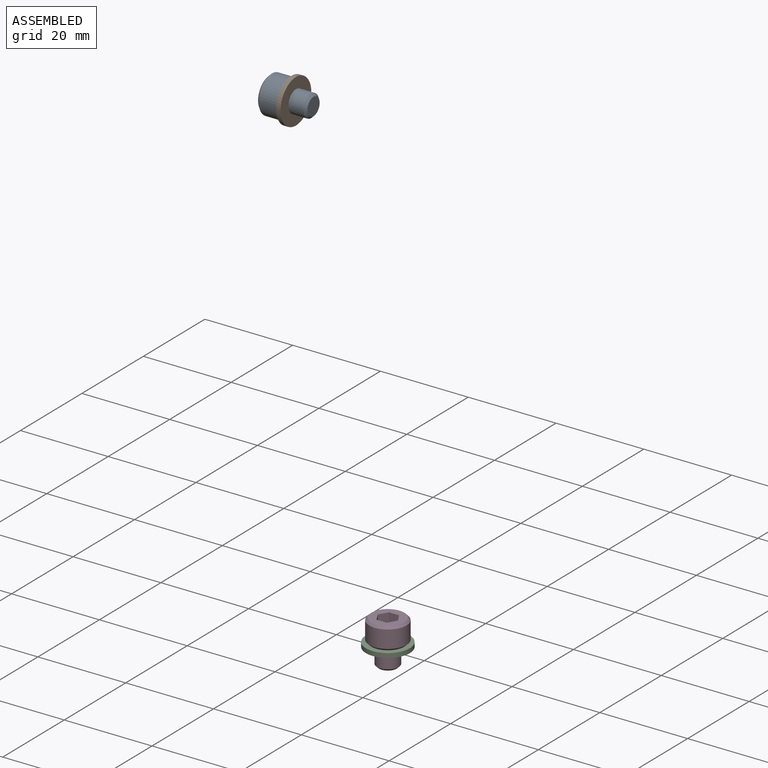
[diagram: assembled view]
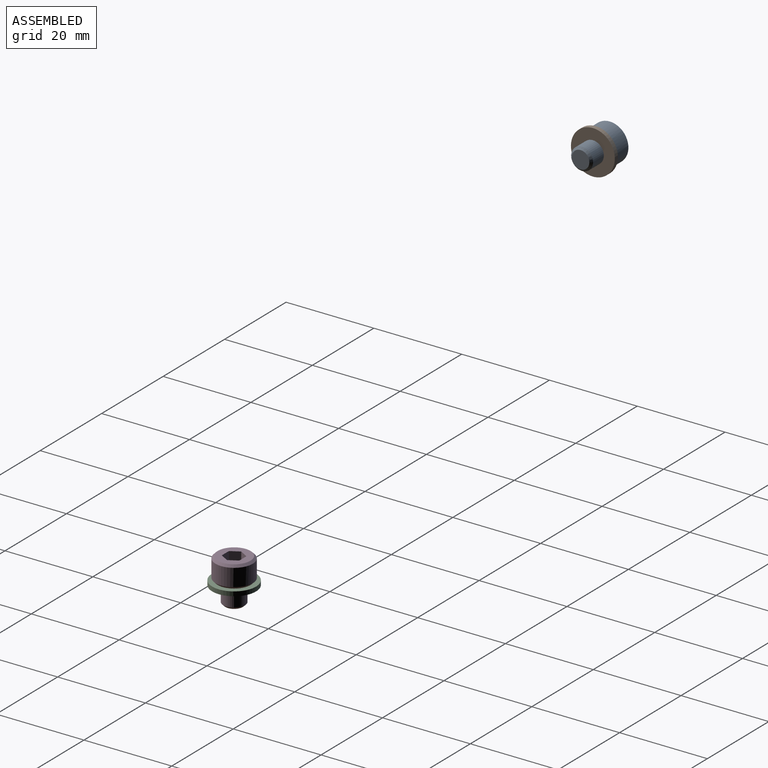
[diagram: assembled view, second angle]
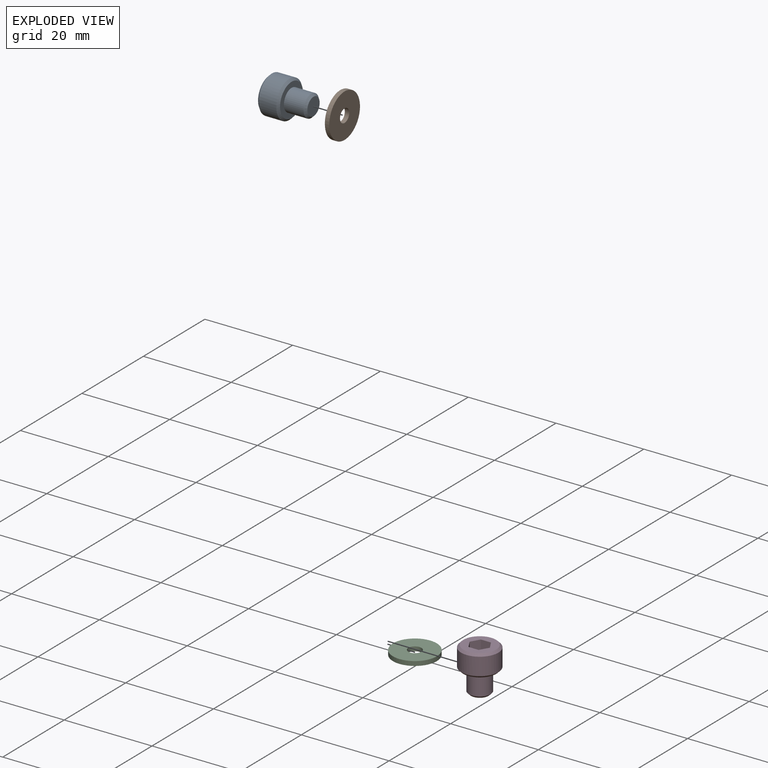
[diagram: exploded view]
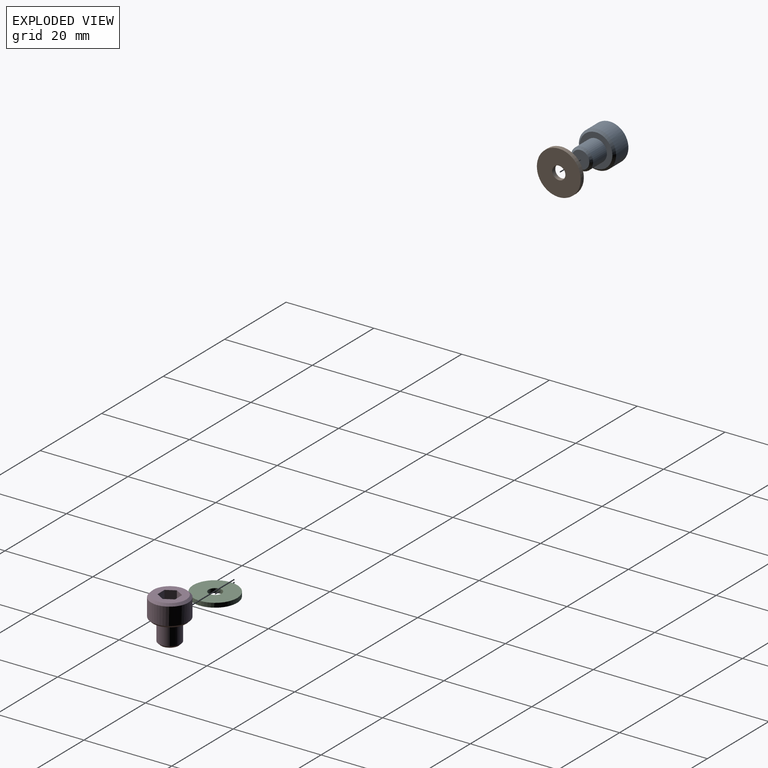
[diagram: exploded view, second angle]
ASSEMBLY  parts=4 mates=4
PART A: 15 faces, bbox 8.5x8.5x10 mm
  f0: plane 7.5x7.5mm, normal (0,0,1), area 30.3mm2, adj f5,f6,f7,f8,f9,f10,f14
  f1: plane 7.5x7.5mm, normal (0,0,-1), area 24.5mm2, adj f2,f13
  f2: cylinder r=2.5mm len=5mm, axis (0,0,1), area 70.7mm2, adj f1,f12
  f3: plane 4x4mm, normal (0,0,-1), area 12.6mm2, adj f12
  f4: cylinder r=4.25mm len=8.5mm, axis (0,0,1), area 106.8mm2, adj f13,f14
  f5: plane 2.5x2mm, normal (-0.87,0.5,0), area 5.8mm2, adj f0,f6,f10,f11
  f6: plane 2.5x2mm, normal (-0.87,-0.5,0), area 5.8mm2, adj f0,f5,f7,f11
  f7: plane 2.5x2.31mm, normal (0,-1,0), area 5.8mm2, adj f0,f6,f8,f11
  f8: plane 2.5x2mm, normal (0.87,-0.5,0), area 5.8mm2, adj f0,f7,f9,f11
  f9: plane 2.5x2mm, normal (0.87,0.5,0), area 5.8mm2, adj f0,f8,f10,f11
  f10: plane 2.5x2.31mm, normal (0,1,0), area 5.8mm2, adj f0,f5,f9,f11
  f11: plane 4.62x4mm, normal (0,0,1), area 13.9mm2, adj f5,f6,f7,f8,f9,f10
  f12: cone r=2.5mm half-angle=45deg, axis (0,0,1), area 10mm2, adj f2,f3
  f13: cone r=4.25mm half-angle=45deg, axis (0,0,1), area 17.8mm2, adj f1,f4
  f14: cone r=3.75mm half-angle=45deg, axis (0,0,-1), area 17.8mm2, adj f0,f4
PART B: 4 faces, bbox 10x10x1 mm
  f0: plane 10x10mm, normal (0,0,-1), area 71.5mm2, adj f1,f3
  f1: cylinder r=5mm len=10mm, axis (0,0,-1), area 31.4mm2, adj f0,f2
  f2: plane 10x10mm, normal (0,0,1), area 71.5mm2, adj f1,f3
  f3: cylinder r=1.5mm len=3mm, axis (0,0,-1), area 9.4mm2, adj f0,f2
PART C: same geometry as B
PART D: same geometry as A
PLACE A rot(axis=(0.69,-0.19,-0.69),159deg) t=(-50.34,35.88,108.76)mm
PLACE B rot(axis=(-0.58,-0.58,0.58),120deg) t=(-54.34,35.88,108.76)mm
PLACE C t=(-1.89,-9.12,27.68)mm
PLACE D t=(-1.89,-9.12,23.68)mm
MATE parallel C.f1 <-> D.f2  axis (0,0,1) through (-1.89,-9.12,28.68)mm
MATE cylindrical B.f1 <-> A.f2  axis (-1,0,0) through (-54.84,35.88,108.76)mm
MATE cylindrical C.f1 <-> D.f2  axis (0,0,1) through (-1.89,-9.12,28.18)mm
MATE parallel B.f1 <-> A.f2  axis (-1,0,0) through (-55.34,35.88,108.76)mm
